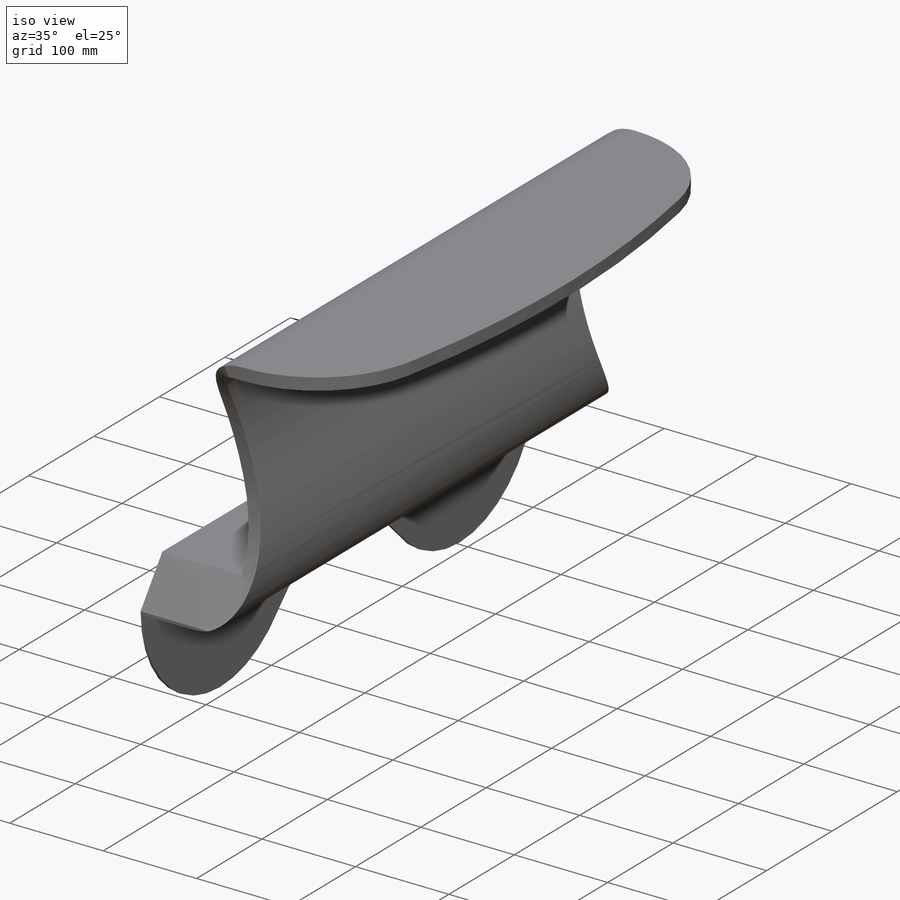
[diagram: iso view]
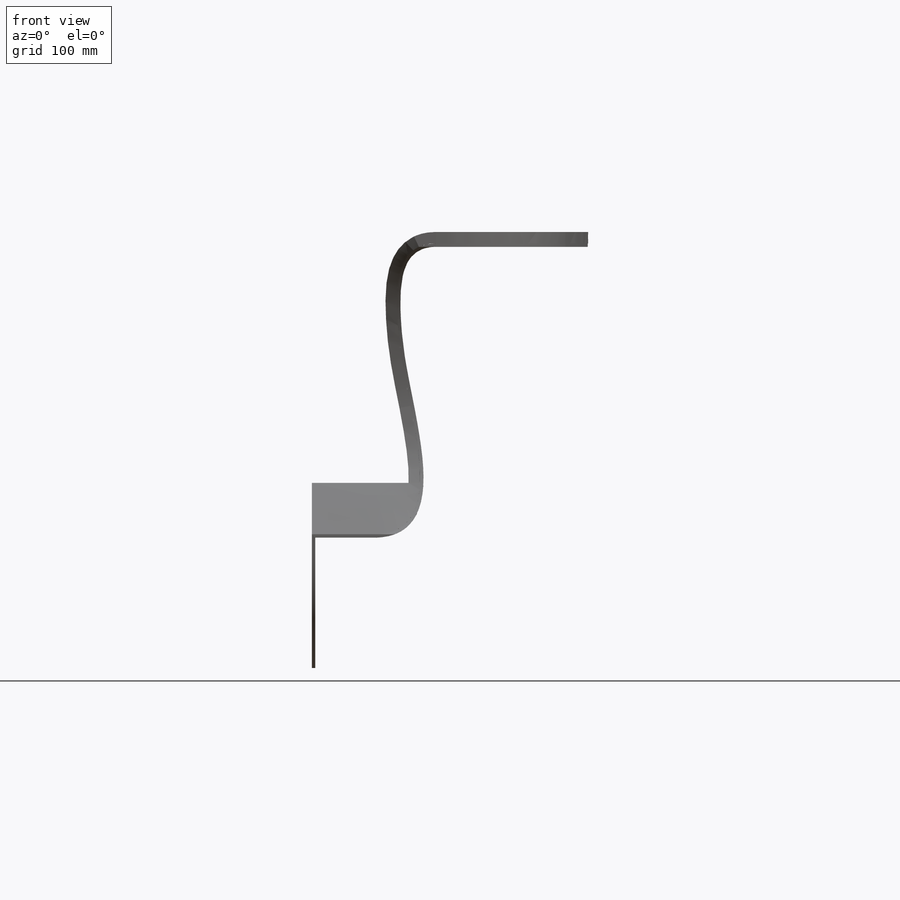
[diagram: front view]
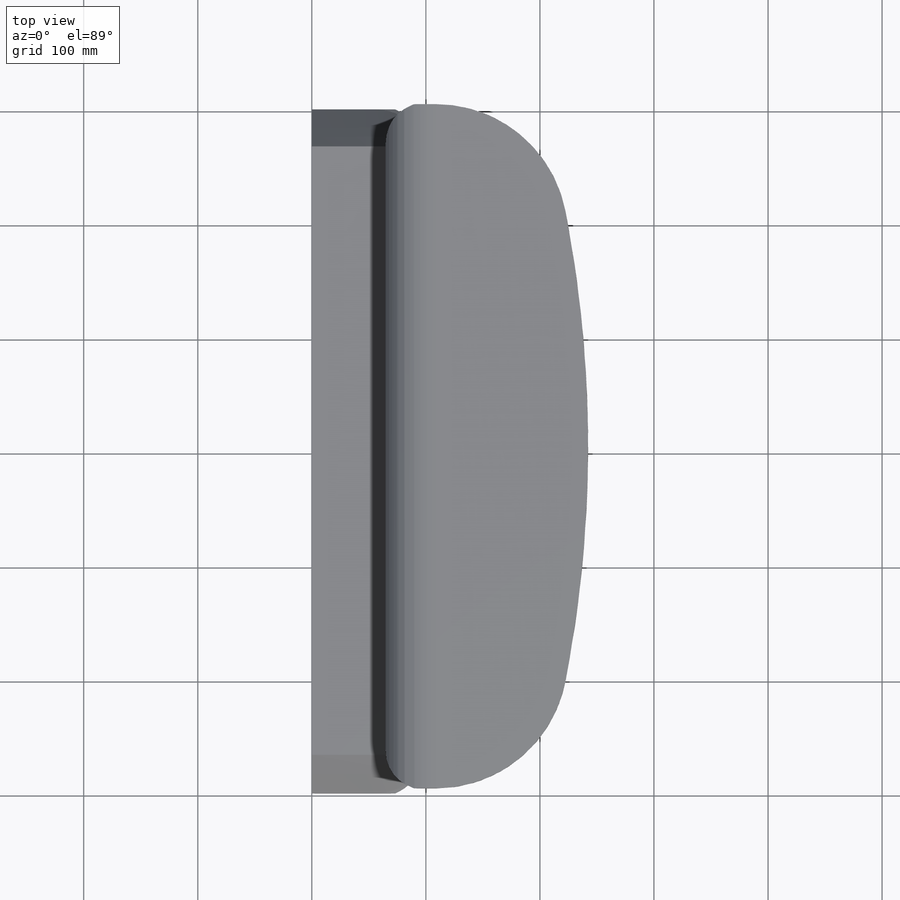
[diagram: top view]
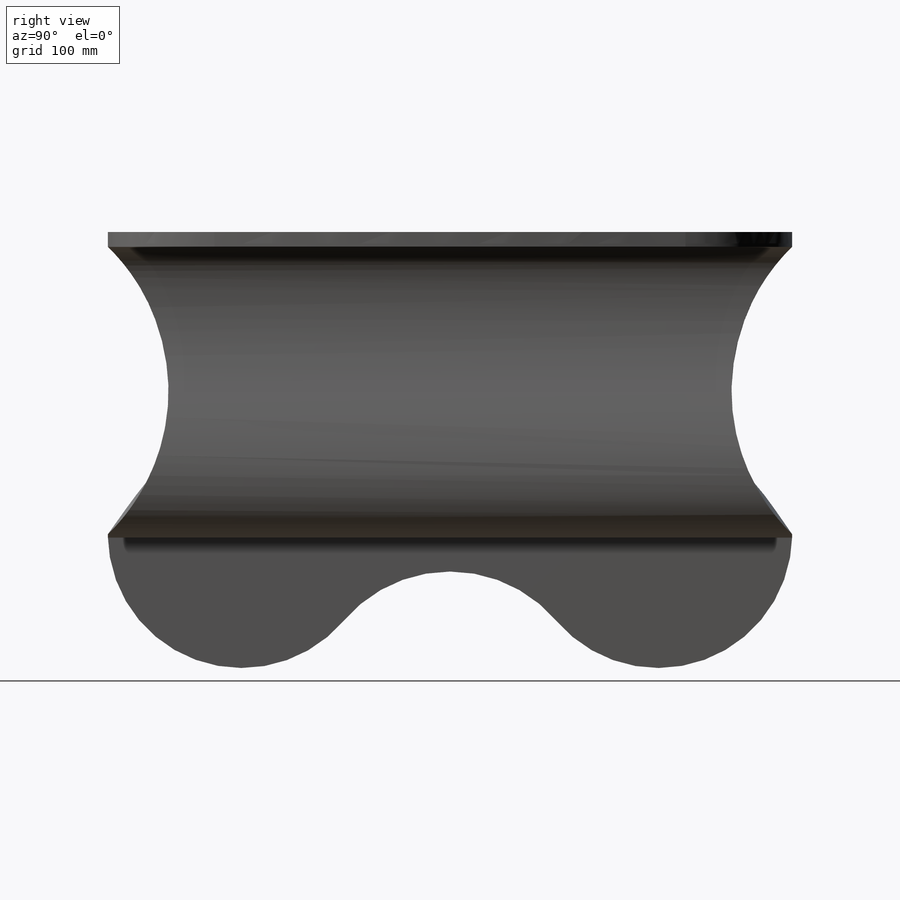
[diagram: right view]
SOLIDWORKS PART (.sldprt)
format: sldprt  version: not decoded by parser v0  size: 541,696 bytes
history: native  units: mm
features: sketch x5, plane x4, cut_extrude x3, material x1, boolean_combine x1 (+8 scaffold rows collapsed)
feature tree (22):
  scaffold x8  (default folders/planes/origin — collapsed)
  material  "Thornel Mat VMA"
  plane  "Ebene vorne"
  plane  "Ebene oben"
  plane  "Ebene rechts"
  sketch  "Skizze1"  dims[c1.D1=154.0mm c1.D2=55.0mm c1.D3=255.0mm c1.D4=150.0mm c2.D1=600.0mm c2.D5=3.0mm c2.D6=10.0mm c2.D7=5.0mm]
  sketch  "Skizze2"  dims[D1=0.0mm]
  cut_extrude  "Schnitt-Linear austragen2"  [1 undecoded]
  sketch  "Skizze3"
  cut_extrude  "Schnitt-Linear austragen3"  [1 undecoded]
  sketch  "Skizze5"  dims[D1=0.0mm]
  cut_extrude  "Schnitt-Linear austragen4"  Depth=10mm
  plane  "Ebene1"  Offset=45mm
  sketch  "Skizze6"  dims[D1=~84.808709mm Oberfläche-Zusammenfügen3=0.0deg]
  boolean_combine  "Kombinieren1"
decode coverage: 5 of 9 modeling features carry decoded parameters
note: ~ marks probable driven/reference dimensions
note: 2 parameter values undecoded
note: suppression state not decoded; provenance and decode notes live in map.json
